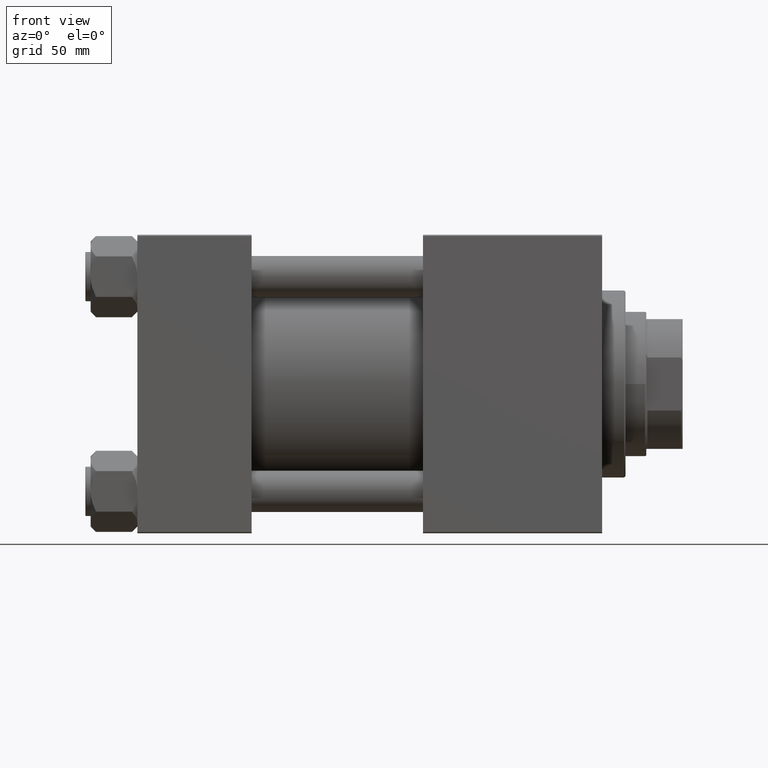
[diagram: clean part render]
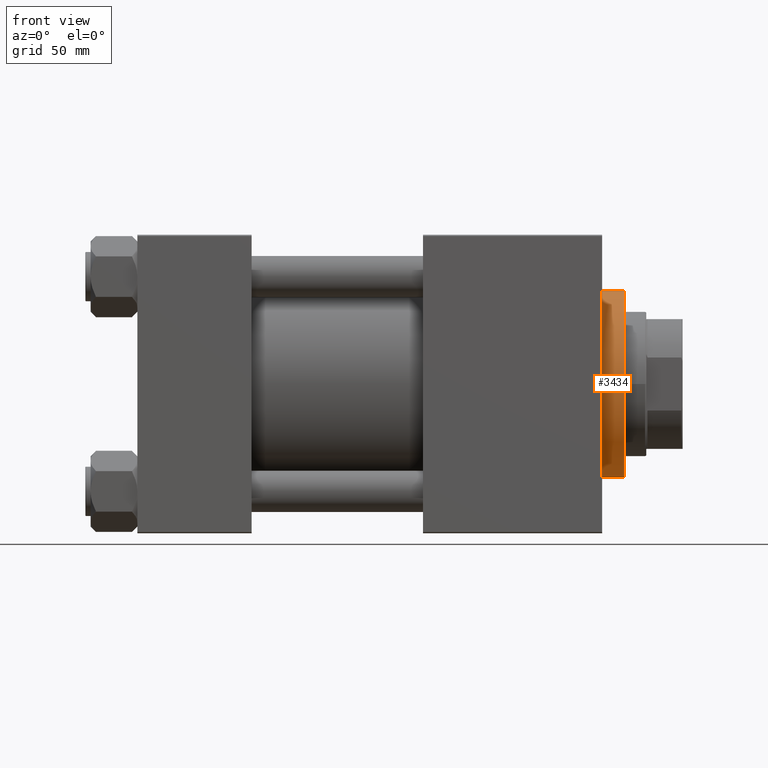
[diagram: same view with one face highlighted and labeled with its STEP entity id]
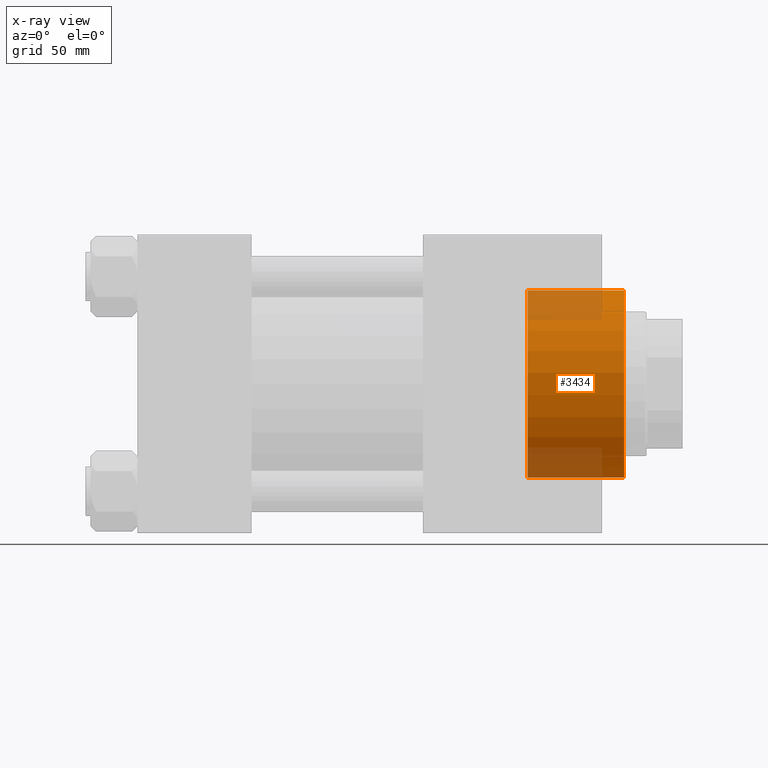
[diagram: x-ray of the same camera — body ghosted, the highlighted face saturated]
A machine part, front view. The second image highlights one B-rep face of the part: STEP entity #3434.
The next image is the same camera in x-ray: the body ghosted, the highlighted face saturated — about 25% of this face is hidden behind the body in this view.
In plain terms, the highlighted cylindrical surface (partial cylindrical patch) has radius 36 mm, axis along (-1, -0, -0).
Its self-contained STEP definition (entity closure, byte-faithful):
#117 = CYLINDRICAL_SURFACE ( 'NONE', #22628, 36.00000000000000000 ) ;
#1553 = DIRECTION ( 'NONE',  ( 0.000000000000000000, 0.000000000000000000, -1.000000000000000000 ) ) ;
#2268 = VERTEX_POINT ( 'NONE', #27846 ) ;
#3392 = ORIENTED_EDGE ( 'NONE', *, *, #26467, .F. ) ;
#3434 = ADVANCED_FACE ( 'NONE', ( #30893 ), #117, .T. ) ;
#3462 = DIRECTION ( 'NONE',  ( -0.000000000000000000, -0.000000000000000000, -1.000000000000000000 ) ) ;
#5210 = ORIENTED_EDGE ( 'NONE', *, *, #48755, .T. ) ;
#12201 = AXIS2_PLACEMENT_3D ( 'NONE', #27808, #21170, #44438 ) ;
#12333 = ORIENTED_EDGE ( 'NONE', *, *, #12679, .T. ) ;
#12679 = EDGE_CURVE ( 'NONE', #25884, #29749, #34697, .T. ) ;
#19336 = DIRECTION ( 'NONE',  ( -0.000000000000000000, -0.000000000000000000, -1.000000000000000000 ) ) ;
#21170 = DIRECTION ( 'NONE',  ( 0.000000000000000000, 0.000000000000000000, 1.000000000000000000 ) ) ;
#21293 = DIRECTION ( 'NONE',  ( 1.000000000000000000, 0.000000000000000000, 0.000000000000000000 ) ) ;
#22628 = AXIS2_PLACEMENT_3D ( 'NONE', #46239, #3462, #46491 ) ;
#24555 = DIRECTION ( 'NONE',  ( -0.000000000000000000, -0.000000000000000000, -1.000000000000000000 ) ) ;
#25884 = VERTEX_POINT ( 'NONE', #35473 ) ;
#26467 = EDGE_CURVE ( 'NONE', #41175, #2268, #27871, .T. ) ;
#27693 = CARTESIAN_POINT ( 'NONE',  ( 36.00000000000000000, 4.408728476930470856E-15, 37.20000000000000284 ) ) ;
#27808 = CARTESIAN_POINT ( 'NONE',  ( 0.000000000000000000, 0.000000000000000000, 0.000000000000000000 ) ) ;
#27846 = CARTESIAN_POINT ( 'NONE',  ( 36.00000000000000000, 4.408728476930470856E-15, 0.000000000000000000 ) ) ;
#27871 = LINE ( 'NONE', #47567, #32461 ) ;
#29749 = VERTEX_POINT ( 'NONE', #44296 ) ;
#30893 = FACE_OUTER_BOUND ( 'NONE', #44220, .T. ) ;
#31603 = ORIENTED_EDGE ( 'NONE', *, *, #37444, .T. ) ;
#32461 = VECTOR ( 'NONE', #24555, 1000.000000000000000 ) ;
#34299 = CIRCLE ( 'NONE', #12201, 36.00000000000000000 ) ;
#34657 = CIRCLE ( 'NONE', #41203, 36.00000000000000000 ) ;
#34697 = LINE ( 'NONE', #42379, #45707 ) ;
#35473 = CARTESIAN_POINT ( 'NONE',  ( -36.00000000000000000, 0.000000000000000000, 37.20000000000000284 ) ) ;
#37444 = EDGE_CURVE ( 'NONE', #29749, #2268, #34299, .T. ) ;
#41175 = VERTEX_POINT ( 'NONE', #27693 ) ;
#41203 = AXIS2_PLACEMENT_3D ( 'NONE', #47898, #1553, #21293 ) ;
#42379 = CARTESIAN_POINT ( 'NONE',  ( -36.00000000000000000, 0.000000000000000000, 28.69999999999999929 ) ) ;
#44220 = EDGE_LOOP ( 'NONE', ( #3392, #5210, #12333, #31603 ) ) ;
#44296 = CARTESIAN_POINT ( 'NONE',  ( -36.00000000000000000, 0.000000000000000000, 0.000000000000000000 ) ) ;
#44438 = DIRECTION ( 'NONE',  ( 1.000000000000000000, 0.000000000000000000, 0.000000000000000000 ) ) ;
#45707 = VECTOR ( 'NONE', #19336, 1000.000000000000000 ) ;
#46239 = CARTESIAN_POINT ( 'NONE',  ( 0.000000000000000000, 0.000000000000000000, 28.69999999999999929 ) ) ;
#46491 = DIRECTION ( 'NONE',  ( -1.000000000000000000, 0.000000000000000000, 0.000000000000000000 ) ) ;
#47567 = CARTESIAN_POINT ( 'NONE',  ( 36.00000000000000000, 4.408728476930470856E-15, 28.69999999999999929 ) ) ;
#47898 = CARTESIAN_POINT ( 'NONE',  ( 0.000000000000000000, 0.000000000000000000, 37.20000000000000284 ) ) ;
#48755 = EDGE_CURVE ( 'NONE', #41175, #25884, #34657, .T. ) ;